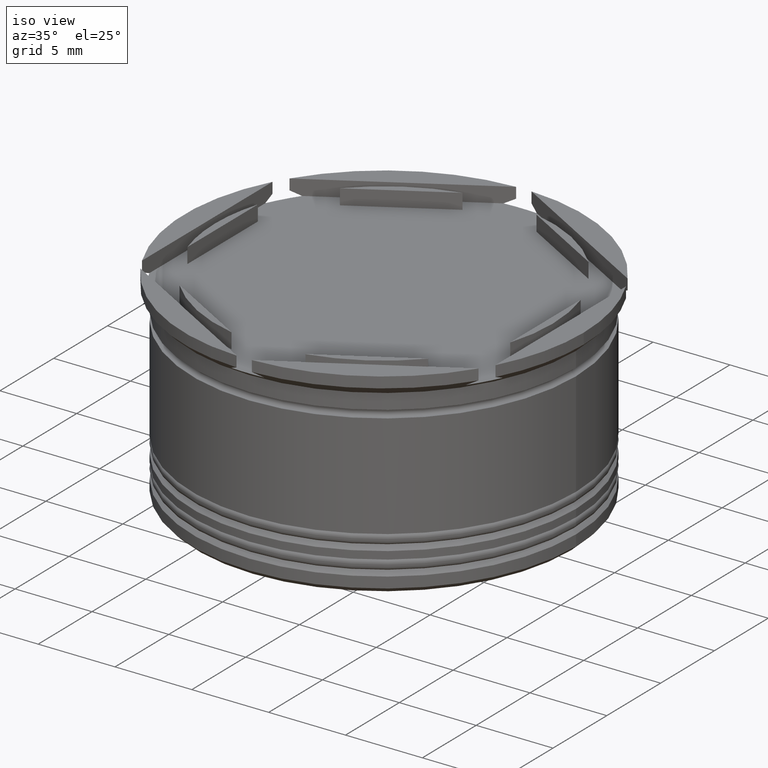
[diagram: clean part render]
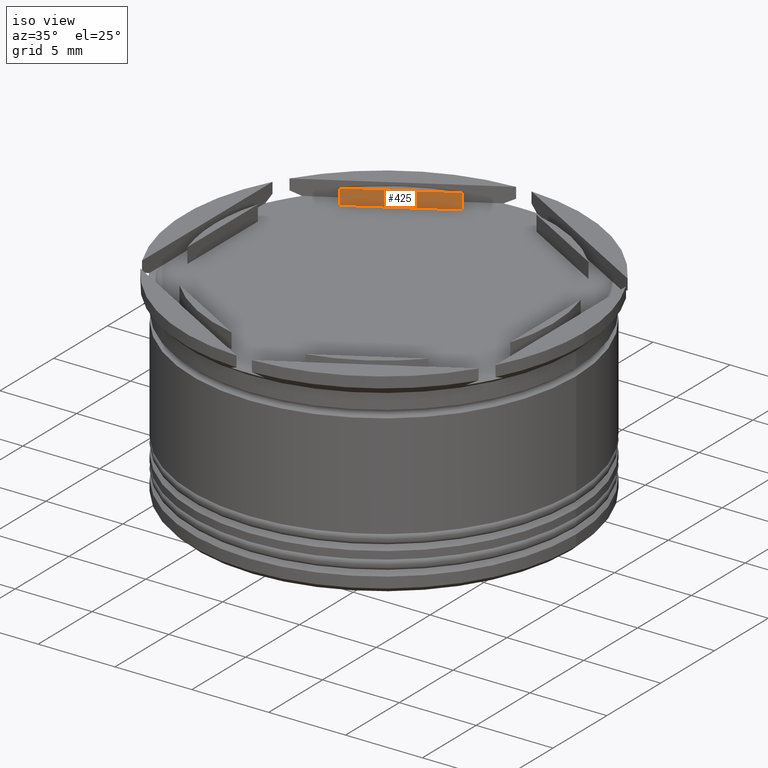
[diagram: same view with one face highlighted and labeled with its STEP entity id]
A machine part, iso view. The second image highlights one B-rep face of the part: STEP entity #425.
In plain terms, the highlighted planar face has unit normal (-0.5, 0.866, 0).
Its self-contained STEP definition (entity closure, byte-faithful):
#77 = LINE ( 'NONE', #1558, #1041 ) ;
#124 = EDGE_CURVE ( 'NONE', #1130, #992, #77, .T. ) ;
#140 = CARTESIAN_POINT ( 'NONE',  ( -2.410545827099856098, 10.73262637081210613, 31.11269837220808654 ) ) ;
#154 = CARTESIAN_POINT ( 'NONE',  ( -2.410545827099856098, 10.73262637081210613, -1.000000000000000888 ) ) ;
#183 = LINE ( 'NONE', #1497, #1984 ) ;
#265 = EDGE_LOOP ( 'NONE', ( #369, #931, #472, #479 ) ) ;
#285 = DIRECTION ( 'NONE',  ( -0.5000000000000001110, 0.8660254037844385966, 0.000000000000000000 ) ) ;
#325 = FACE_OUTER_BOUND ( 'NONE', #265, .T. ) ;
#369 = ORIENTED_EDGE ( 'NONE', *, *, #124, .T. ) ;
#425 = ADVANCED_FACE ( 'NONE', ( #325 ), #1073, .F. ) ;
#472 = ORIENTED_EDGE ( 'NONE', *, *, #1752, .T. ) ;
#479 = ORIENTED_EDGE ( 'NONE', *, *, #1765, .F. ) ;
#826 = LINE ( 'NONE', #1398, #2102 ) ;
#931 = ORIENTED_EDGE ( 'NONE', *, *, #1421, .F. ) ;
#992 = VERTEX_POINT ( 'NONE', #2305 ) ;
#1041 = VECTOR ( 'NONE', #1069, 1000.000000000000000 ) ;
#1068 = LINE ( 'NONE', #140, #2366 ) ;
#1069 = DIRECTION ( 'NONE',  ( -0.8660254037844385966, -0.5000000000000001110, -0.000000000000000000 ) ) ;
#1073 = PLANE ( 'NONE',  #1779 ) ;
#1130 = VERTEX_POINT ( 'NONE', #2043 ) ;
#1222 = DIRECTION ( 'NONE',  ( -0.8660254037844385966, -0.5000000000000001110, 0.000000000000000000 ) ) ;
#1258 = VERTEX_POINT ( 'NONE', #1931 ) ;
#1326 = DIRECTION ( 'NONE',  ( 0.000000000000000000, 0.000000000000000000, 1.000000000000000000 ) ) ;
#1398 = CARTESIAN_POINT ( 'NONE',  ( -1.734723475976807094E-15, 12.12435565298213369, -1.000000000000000888 ) ) ;
#1421 = EDGE_CURVE ( 'NONE', #1258, #992, #183, .T. ) ;
#1497 = CARTESIAN_POINT ( 'NONE',  ( -8.089454172900142126, 7.453907108661097070, 31.11269837220808654 ) ) ;
#1558 = CARTESIAN_POINT ( 'NONE',  ( -5.249999999999998224, 9.093266739736600712, 0.000000000000000000 ) ) ;
#1752 = EDGE_CURVE ( 'NONE', #1258, #1855, #826, .T. ) ;
#1765 = EDGE_CURVE ( 'NONE', #1130, #1855, #1068, .T. ) ;
#1779 = AXIS2_PLACEMENT_3D ( 'NONE', #1918, #285, #1222 ) ;
#1797 = DIRECTION ( 'NONE',  ( 0.8660254037844385966, 0.5000000000000001110, -0.000000000000000000 ) ) ;
#1855 = VERTEX_POINT ( 'NONE', #154 ) ;
#1918 = CARTESIAN_POINT ( 'NONE',  ( -1.734723475976807094E-15, 12.12435565298213369, -33.07802986469086903 ) ) ;
#1931 = CARTESIAN_POINT ( 'NONE',  ( -8.089454172900142126, 7.453907108661097070, -1.000000000000000888 ) ) ;
#1984 = VECTOR ( 'NONE', #1326, 1000.000000000000000 ) ;
#2043 = CARTESIAN_POINT ( 'NONE',  ( -2.410545827099856098, 10.73262637081210613, 0.000000000000000000 ) ) ;
#2102 = VECTOR ( 'NONE', #1797, 1000.000000000000000 ) ;
#2165 = DIRECTION ( 'NONE',  ( -0.000000000000000000, -0.000000000000000000, -1.000000000000000000 ) ) ;
#2305 = CARTESIAN_POINT ( 'NONE',  ( -8.089454172900140350, 7.453907108661096181, 0.000000000000000000 ) ) ;
#2366 = VECTOR ( 'NONE', #2165, 1000.000000000000000 ) ;